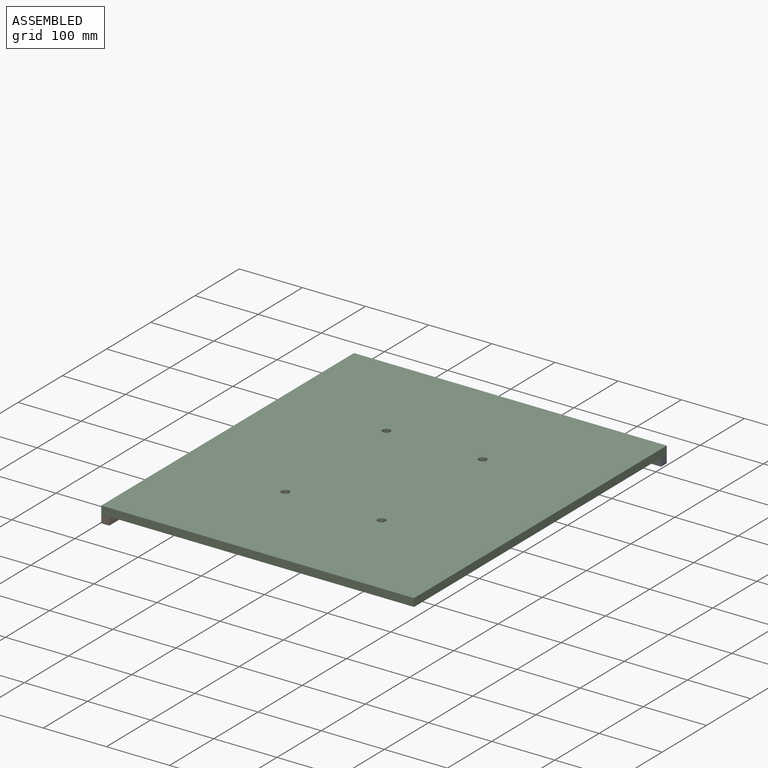
[diagram: assembled view]
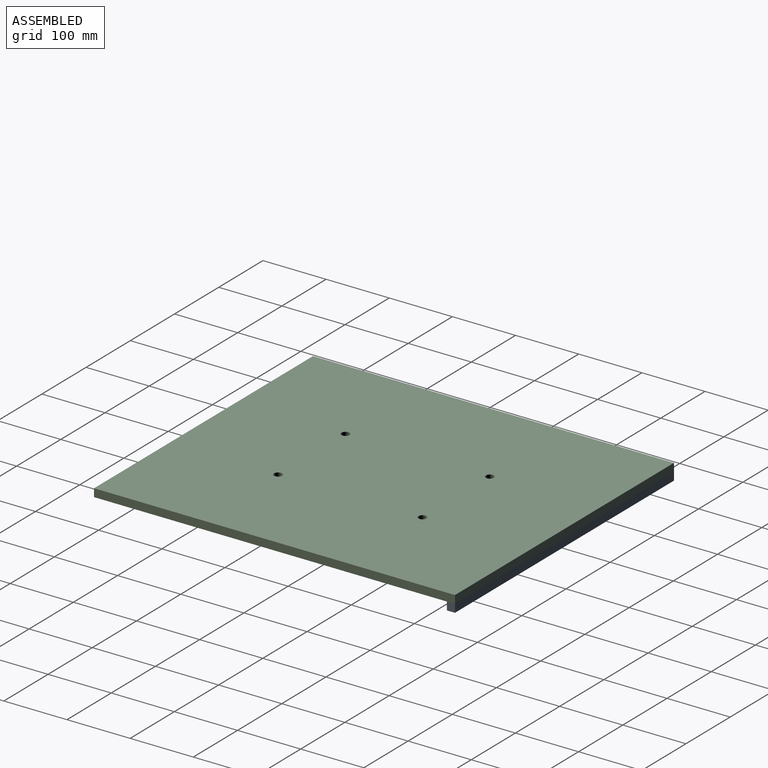
[diagram: assembled view, second angle]
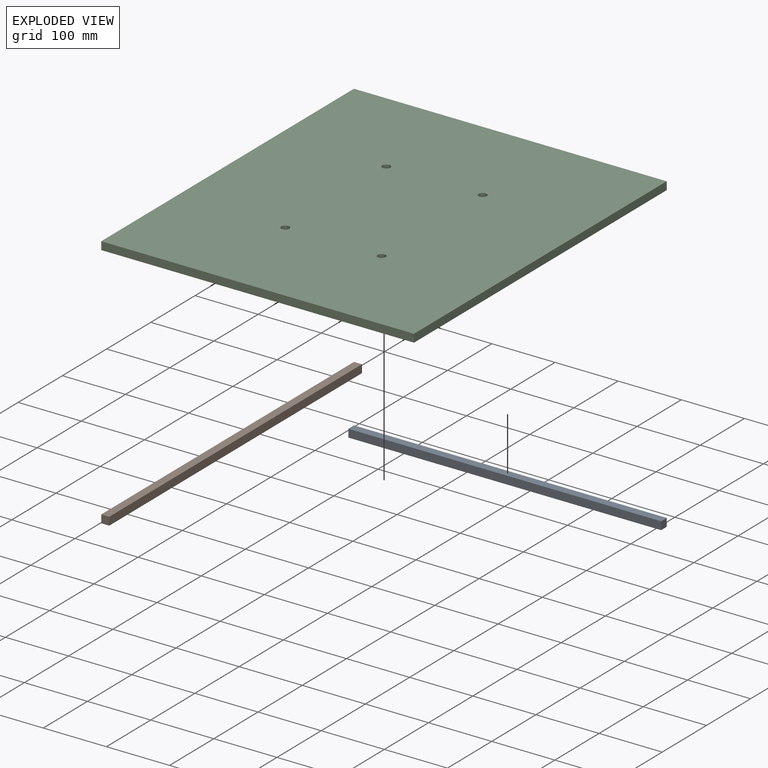
[diagram: exploded view]
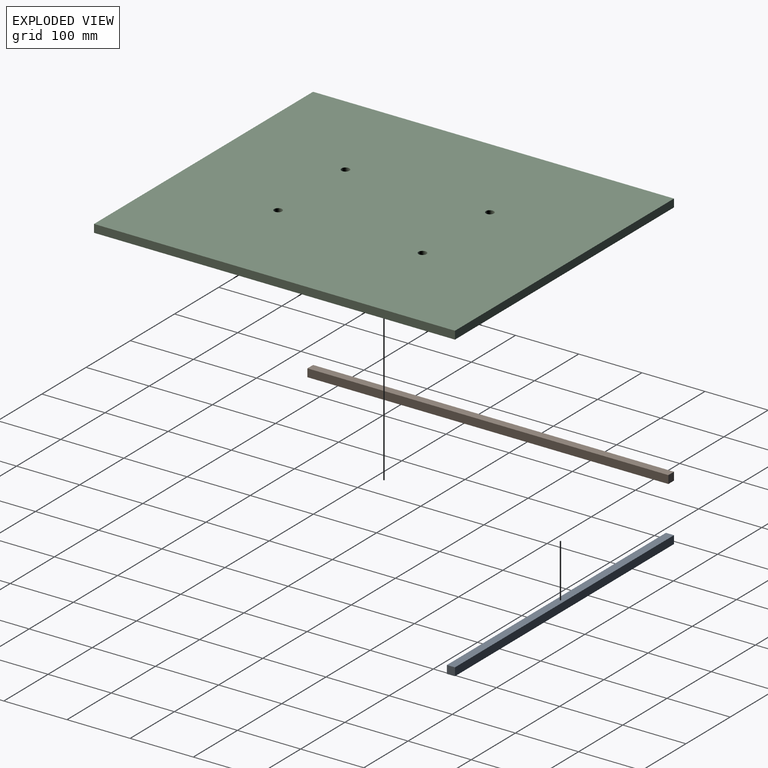
[diagram: exploded view, second angle]
ASSEMBLY  parts=3 mates=2
PART A: 6 faces, bbox 12.7x495.3x12.7 mm
  f0: plane 495.3x12.7mm, normal (0,0,-1), area 6290.3mm2, adj f1,f3,f4,f5
  f1: plane 495.3x12.7mm, normal (1,0,0), area 6290.3mm2, adj f0,f2,f4,f5
  f2: plane 495.3x12.7mm, normal (0,0,1), area 6290.3mm2, adj f1,f3,f4,f5
  f3: plane 495.3x12.7mm, normal (-1,0,0), area 6290.3mm2, adj f0,f2,f4,f5
  f4: plane 12.7x12.7mm, normal (0,-1,0), area 161.3mm2, adj f0,f1,f2,f3
  f5: plane 12.7x12.7mm, normal (0,1,0), area 161.3mm2, adj f0,f1,f2,f3
PART B: 6 faces, bbox 12.7x571.5x12.7 mm
  f0: plane 571.5x12.7mm, normal (1,0,0), area 7258mm2, adj f1,f3,f4,f5
  f1: plane 571.5x12.7mm, normal (0,0,1), area 7258mm2, adj f0,f2,f4,f5
  f2: plane 571.5x12.7mm, normal (-1,0,0), area 7258mm2, adj f1,f3,f4,f5
  f3: plane 571.5x12.7mm, normal (0,0,-1), area 7258mm2, adj f0,f2,f4,f5
  f4: plane 12.7x12.7mm, normal (0,-1,0), area 161.3mm2, adj f0,f1,f2,f3
  f5: plane 12.7x12.7mm, normal (0,1,0), area 161.3mm2, adj f0,f1,f2,f3
PART C: 10 faces, bbox 495.3x571.5x12.7 mm
  f0: plane 495.3x12.7mm, normal (0,-1,0), area 6290.3mm2, adj f1,f7,f8,f9
  f1: plane 571.5x12.7mm, normal (1,0,0), area 7258mm2, adj f0,f2,f8,f9
  f2: plane 495.3x12.7mm, normal (0,1,0), area 6290.3mm2, adj f1,f7,f8,f9
  f3: cylinder r=6.35mm len=12.7mm, axis (0,0,-1), area 506.7mm2, adj f8,f9
  f4: cylinder r=6.35mm len=12.7mm, axis (0,0,-1), area 506.7mm2, adj f8,f9
  f5: cylinder r=6.35mm len=12.7mm, axis (0,0,-1), area 506.7mm2, adj f8,f9
  f6: cylinder r=6.35mm len=12.7mm, axis (0,0,-1), area 506.7mm2, adj f8,f9
  f7: plane 571.5x12.7mm, normal (-1,0,0), area 7258mm2, adj f0,f2,f8,f9
  f8: plane 571.5x495.3mm, normal (0,0,1), area 282557.2mm2, adj f0,f1,f2,f3,f4,f5,f6,f7
  f9: plane 571.5x495.3mm, normal (0,0,-1), area 282557.2mm2, adj f0,f1,f2,f3,f4,f5,f6,f7
PLACE A rot(axis=(0.71,-0.71,0),180deg) t=(-473.1,143.49,50.17)mm
PLACE B t=(-466.75,149.84,50.17)mm
PLACE C t=(-225.45,-135.91,56.52)mm
MATE fastened B.f1 <-> C.f9  axis (0,0,1) through (-473.1,-421.66,56.52)mm
MATE fastened A.f0 <-> C.f9  axis (0,0,1) through (22.2,149.84,56.52)mm
